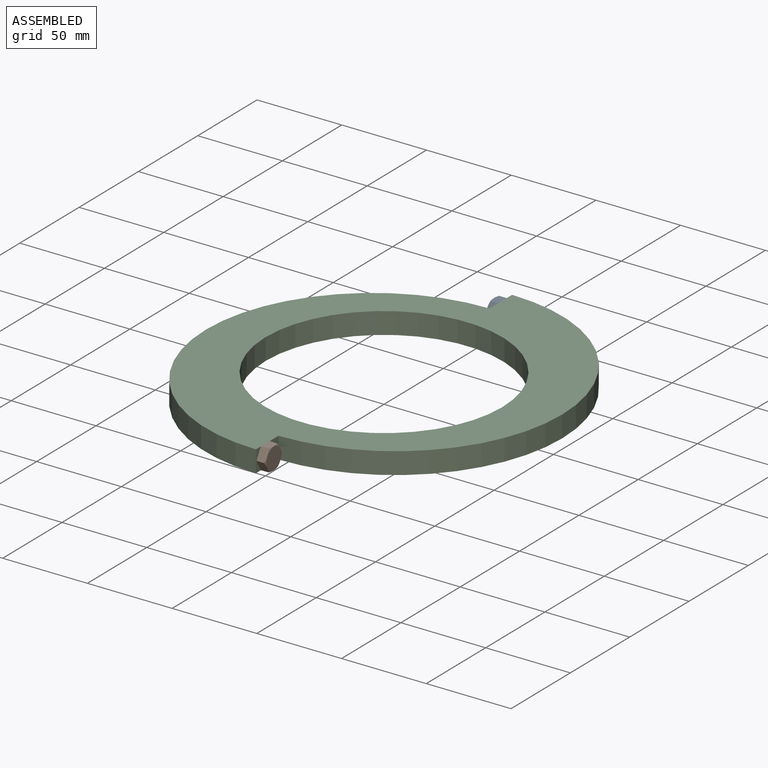
[diagram: assembled view]
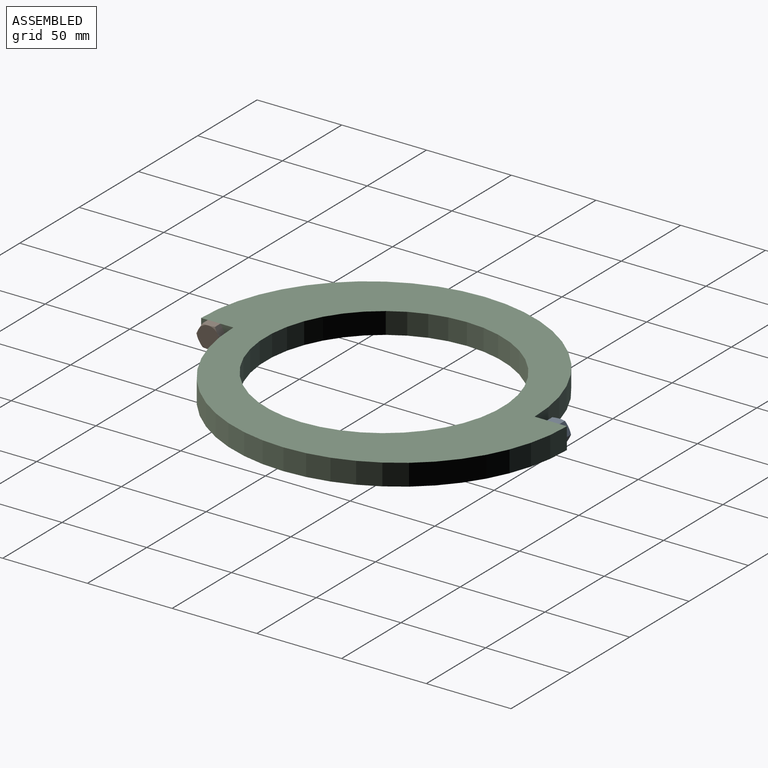
[diagram: assembled view, second angle]
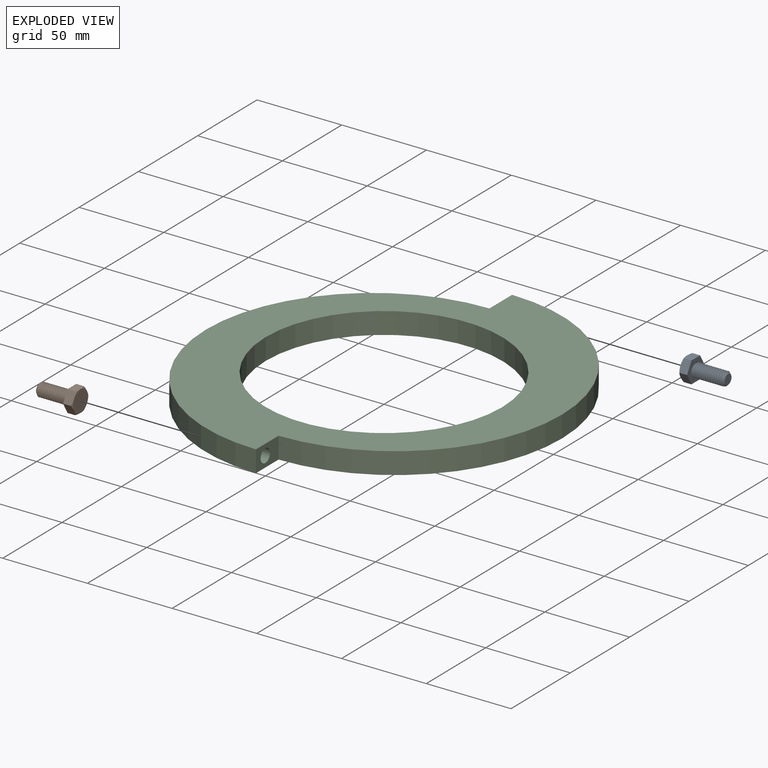
[diagram: exploded view]
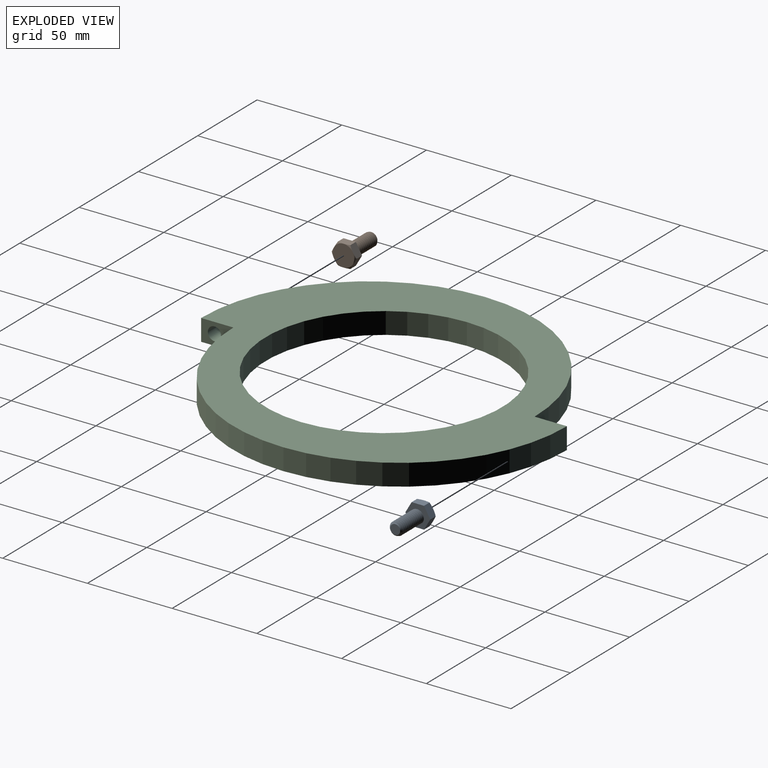
[diagram: exploded view, second angle]
ASSEMBLY  parts=3 mates=2
PART A: 20 faces, bbox 25.3x15.3x15.3 mm
  f0: plane 7.94x5.77mm, normal (0,0,1), area 36.4mm2, adj f1,f5,f12,f13,f18
  f1: plane 6.95x5.77mm, normal (0,0.87,0.5), area 36.4mm2, adj f0,f2,f12,f17,f18
  f2: plane 6.95x5.77mm, normal (0,0.87,-0.5), area 36.4mm2, adj f1,f3,f12,f16,f17
  f3: plane 7.94x5.77mm, normal (0,0,-1), area 36.4mm2, adj f2,f4,f12,f15,f16
  f4: plane 6.95x5.77mm, normal (0,-0.87,-0.5), area 36.4mm2, adj f3,f5,f12,f14,f15
  f5: plane 6.95x5.77mm, normal (0,-0.87,0.5), area 36.4mm2, adj f0,f4,f12,f13,f14
  f6: cylinder r=3.97mm len=17.99mm, axis (1,0,0), area 56.2mm2, adj f7,f10,f11,f12
  f7: cone r=2.91mm half-angle=45deg, axis (-1,0,0), area 17.6mm2, adj f6,f8,f9,f10,f11
  f8: plane 5.82x5.82mm, normal (1,0,0), area 26.6mm2, adj f7
  f9: cylinder r=3.05mm len=18.91mm, axis (1,0,0), area 45.5mm2, adj f7,f10,f11,f12
  f10: bspline ~19.58x7.94mm, area 305.8mm2, adj f6,f7,f9,f12
  f11: bspline ~20.11x7.94mm, area 305.1mm2, adj f6,f7,f9,f12
  f12: plane 15.21x13.25mm, normal (1,0,0), area 100.6mm2, adj f0,f1,f2,f3,f4,f5,f6,f9
  f13: cone r=6.35mm half-angle=60deg, axis (1,0,0), area 4mm2, adj f0,f5,f19
  f14: cone r=6.35mm half-angle=60deg, axis (1,0,0), area 4mm2, adj f4,f5,f19
  f15: cone r=6.35mm half-angle=60deg, axis (1,0,0), area 4mm2, adj f3,f4,f19
  f16: cone r=6.35mm half-angle=60deg, axis (1,0,0), area 4mm2, adj f2,f3,f19
  f17: cone r=6.35mm half-angle=60deg, axis (1,0,0), area 4mm2, adj f1,f2,f19
  f18: cone r=6.35mm half-angle=60deg, axis (1,0,0), area 4mm2, adj f0,f1,f19
  f19: plane 12.7x12.7mm, normal (-1,0,0), area 126.7mm2, adj f13,f14,f15,f16,f17,f18
PART B: same geometry as A
PART C: 11 faces, bbox 196.9x215.9x12.7 mm
  f0: plane 19.05x12.7mm, normal (-1,0,0), area 192.5mm2, adj f2,f3,f4,f5,f8
  f1: cylinder r=69.85mm len=139.7mm, axis (0,0,-1), area 5573.8mm2, adj f3,f4
  f2: cylinder r=98.42mm len=196.85mm, axis (0,0,-1), area 3927mm2, adj f0,f3,f4,f7
  f3: plane 215.9x196.85mm, normal (0,0,1), area 15106.2mm2, adj f0,f1,f2,f7,f8
  f4: plane 215.9x196.85mm, normal (0,0,-1), area 15106.2mm2, adj f0,f1,f2,f7,f8
  f5: cylinder r=3.97mm len=12.7mm, axis (-1,0,0), area 316.7mm2, adj f0,f6
  f6: plane 7.94x7.94mm, normal (-1,0,0), area 49.5mm2, adj f5
  f7: plane 19.05x12.7mm, normal (1,0,0), area 192.5mm2, adj f2,f3,f4,f8,f9
  f8: cylinder r=98.42mm len=196.85mm, axis (0,0,-1), area 3927mm2, adj f0,f3,f4,f7
  f9: cylinder r=3.97mm len=12.7mm, axis (1,0,0), area 316.7mm2, adj f7,f10
  f10: plane 7.94x7.94mm, normal (1,0,0), area 49.5mm2, adj f9
PLACE A t=(6.95,99.85,-0.07)mm
PLACE B rot(axis=(0,1,0),180deg) t=(-6.95,-100.18,0.07)mm
PLACE C t=(0,0,-6.35)mm
MATE fastened B.f12 <-> C.f9  axis (-1,0,0) through (0,-100.01,0)mm
MATE fastened A.f12 <-> C.f5  axis (1,0,0) through (0,100.01,0)mm
